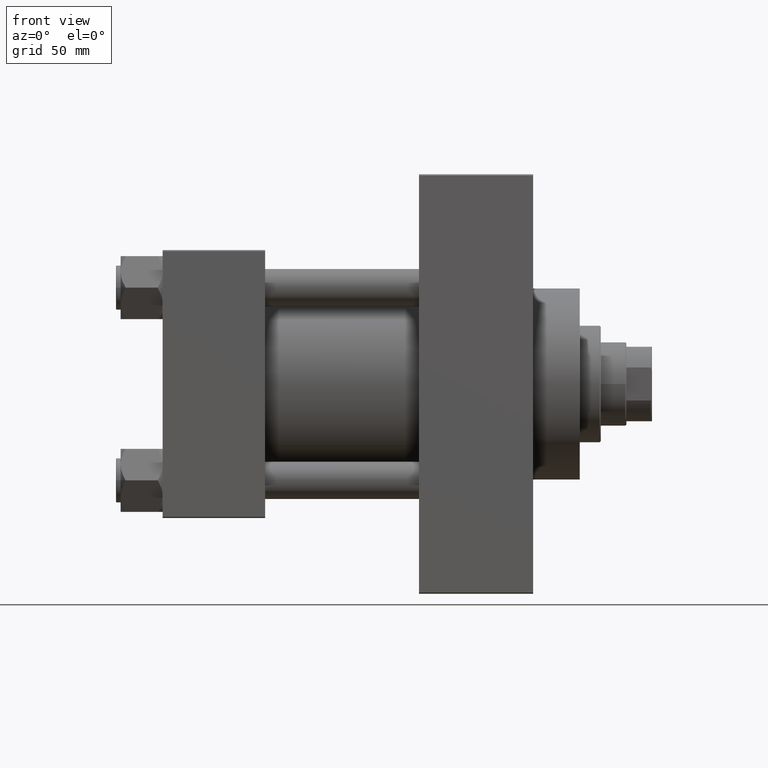
[diagram: clean part render]
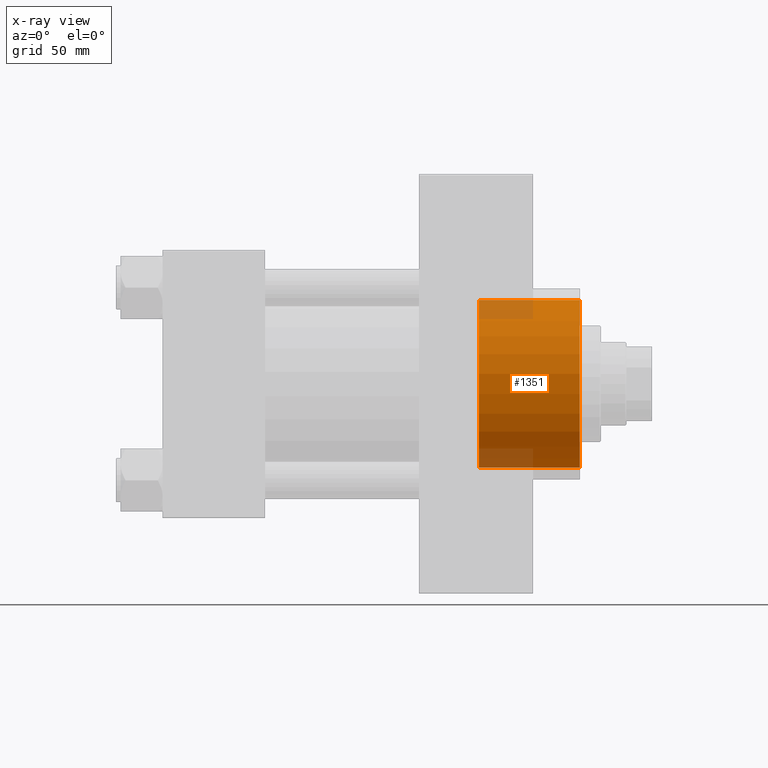
[diagram: x-ray — body ghosted, one internal face saturated and labeled with its STEP entity id]
A machine part, front view, then the same camera in x-ray: the body is ghosted and one INTERNAL B-rep face — a face not visible from any outside direction — is saturated and labeled: STEP entity #1351.
In plain terms, the highlighted cylindrical surface (partial cylindrical patch) has radius 36 mm, axis along (1, 0, 0).
Its self-contained STEP definition (entity closure, byte-faithful):
#29 = VECTOR ( 'NONE', #24386, 1000.000000000000000 ) ;
#636 = CARTESIAN_POINT ( 'NONE',  ( 179.0000000000000000, 0.000000000000000000, -36.00000000000000000 ) ) ;
#1351 = ADVANCED_FACE ( 'NONE', ( #25054 ), #40717, .F. ) ;
#3691 = VERTEX_POINT ( 'NONE', #6762 ) ;
#6762 = CARTESIAN_POINT ( 'NONE',  ( 135.7400000000000091, 4.408728476930470856E-15, 36.00000000000000000 ) ) ;
#7795 = DIRECTION ( 'NONE',  ( 0.000000000000000000, 0.000000000000000000, -1.000000000000000000 ) ) ;
#8276 = CARTESIAN_POINT ( 'NONE',  ( 179.0000000000000000, 4.408728476930470856E-15, 36.00000000000000000 ) ) ;
#9679 = LINE ( 'NONE', #12340, #29 ) ;
#12115 = AXIS2_PLACEMENT_3D ( 'NONE', #31379, #27030, #38128 ) ;
#12340 = CARTESIAN_POINT ( 'NONE',  ( 135.7400000000000091, 4.408728476930470856E-15, 36.00000000000000000 ) ) ;
#12393 = VERTEX_POINT ( 'NONE', #41509 ) ;
#14468 = EDGE_CURVE ( 'NONE', #20904, #32458, #22110, .T. ) ;
#14559 = CARTESIAN_POINT ( 'NONE',  ( 135.7400000000000091, 0.000000000000000000, 0.000000000000000000 ) ) ;
#14676 = DIRECTION ( 'NONE',  ( 1.000000000000000000, -0.000000000000000000, -0.000000000000000000 ) ) ;
#15338 = ORIENTED_EDGE ( 'NONE', *, *, #39413, .F. ) ;
#19508 = AXIS2_PLACEMENT_3D ( 'NONE', #14559, #44217, #7795 ) ;
#20904 = VERTEX_POINT ( 'NONE', #8276 ) ;
#21276 = ORIENTED_EDGE ( 'NONE', *, *, #14468, .T. ) ;
#22110 = CIRCLE ( 'NONE', #12115, 36.00000000000000000 ) ;
#22922 = EDGE_CURVE ( 'NONE', #3691, #20904, #9679, .T. ) ;
#24386 = DIRECTION ( 'NONE',  ( 1.000000000000000000, -0.000000000000000000, -0.000000000000000000 ) ) ;
#25054 = FACE_OUTER_BOUND ( 'NONE', #27820, .T. ) ;
#25768 = CARTESIAN_POINT ( 'NONE',  ( 135.7400000000000091, 0.000000000000000000, 0.000000000000000000 ) ) ;
#26009 = DIRECTION ( 'NONE',  ( 0.000000000000000000, 0.000000000000000000, -1.000000000000000000 ) ) ;
#27030 = DIRECTION ( 'NONE',  ( 1.000000000000000000, 0.000000000000000000, 0.000000000000000000 ) ) ;
#27297 = LINE ( 'NONE', #27537, #43563 ) ;
#27537 = CARTESIAN_POINT ( 'NONE',  ( 135.7400000000000091, 0.000000000000000000, -36.00000000000000000 ) ) ;
#27820 = EDGE_LOOP ( 'NONE', ( #30530, #34803, #21276, #15338 ) ) ;
#30530 = ORIENTED_EDGE ( 'NONE', *, *, #35795, .F. ) ;
#31379 = CARTESIAN_POINT ( 'NONE',  ( 179.0000000000000000, 0.000000000000000000, 0.000000000000000000 ) ) ;
#32458 = VERTEX_POINT ( 'NONE', #636 ) ;
#34768 = DIRECTION ( 'NONE',  ( 1.000000000000000000, -0.000000000000000000, -0.000000000000000000 ) ) ;
#34803 = ORIENTED_EDGE ( 'NONE', *, *, #22922, .T. ) ;
#35795 = EDGE_CURVE ( 'NONE', #3691, #12393, #40312, .T. ) ;
#38128 = DIRECTION ( 'NONE',  ( 0.000000000000000000, 0.000000000000000000, -1.000000000000000000 ) ) ;
#39413 = EDGE_CURVE ( 'NONE', #12393, #32458, #27297, .T. ) ;
#40312 = CIRCLE ( 'NONE', #19508, 36.00000000000000000 ) ;
#40717 = CYLINDRICAL_SURFACE ( 'NONE', #46458, 36.00000000000000000 ) ;
#41509 = CARTESIAN_POINT ( 'NONE',  ( 135.7400000000000091, 0.000000000000000000, -36.00000000000000000 ) ) ;
#43563 = VECTOR ( 'NONE', #34768, 1000.000000000000000 ) ;
#44217 = DIRECTION ( 'NONE',  ( 1.000000000000000000, 0.000000000000000000, 0.000000000000000000 ) ) ;
#46458 = AXIS2_PLACEMENT_3D ( 'NONE', #25768, #14676, #26009 ) ;